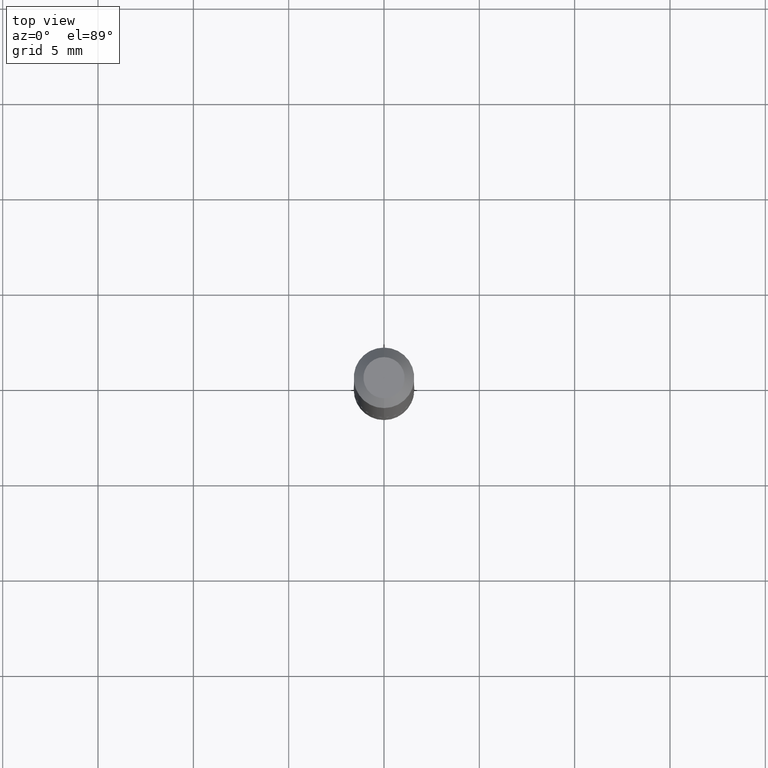
[diagram: clean part render]
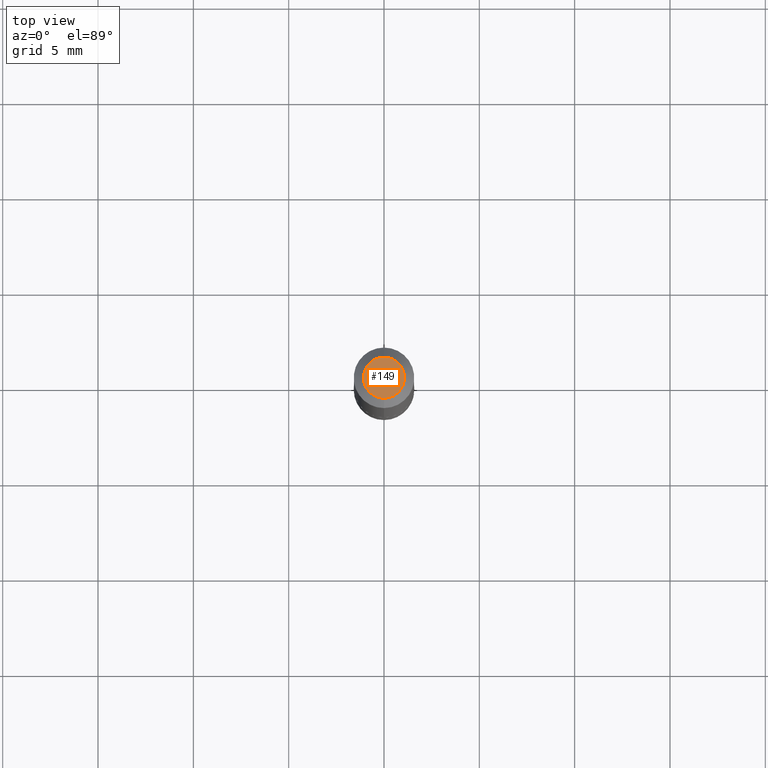
[diagram: same view with one face highlighted and labeled with its STEP entity id]
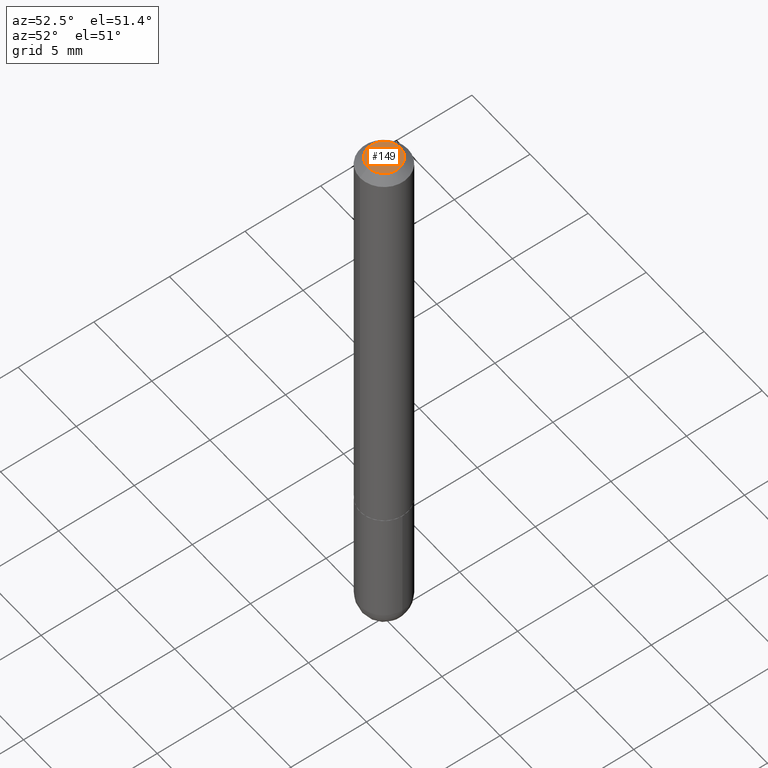
[diagram: same view with one face highlighted and labeled with its STEP entity id]
A machine part, top view. The second image highlights one B-rep face of the part: STEP entity #149.
A second angle (auxiliary view) of the same face is appended — the face is thin or edge-on in the first view.
In plain terms, the highlighted planar face has unit normal (0, -0, -1).
Its self-contained STEP definition (entity closure, byte-faithful):
#16 = AXIS2_PLACEMENT_3D ( 'NONE', #382, #95, #224 ) ;
#26 = CARTESIAN_POINT ( 'NONE',  ( -3.601761448830038135E-16, -0.04249999999999968386, 4.026143430372425824E-16 ) ) ;
#56 = AXIS2_PLACEMENT_3D ( 'NONE', #248, #373, #343 ) ;
#69 = EDGE_LOOP ( 'NONE', ( #234, #102 ) ) ;
#73 = DIRECTION ( 'NONE',  ( -6.982962677686265922E-15, -1.000000000000000000, 3.519530153201801222E-15 ) ) ;
#80 = CARTESIAN_POINT ( 'NONE',  ( 3.666055405785279275E-16, 0.04249999999999968386, 1.034542800150916889E-16 ) ) ;
#95 = DIRECTION ( 'NONE',  ( -2.425882423803152125E-29, 3.519530153201801222E-15, 1.000000000000000000 ) ) ;
#102 = ORIENTED_EDGE ( 'NONE', *, *, #329, .T. ) ;
#104 = VERTEX_POINT ( 'NONE', #80 ) ;
#114 = PLANE ( 'NONE',  #56 ) ;
#138 = CARTESIAN_POINT ( 'NONE',  ( -6.138314889504602540E-45, 8.905618892110033867E-31, 2.530343115261671418E-16 ) ) ;
#147 = CIRCLE ( 'NONE', #153, 0.04249999999999968386 ) ;
#149 = ADVANCED_FACE ( 'NONE', ( #250 ), #114, .F. ) ;
#153 = AXIS2_PLACEMENT_3D ( 'NONE', #138, #233, #73 ) ;
#173 = VERTEX_POINT ( 'NONE', #26 ) ;
#224 = DIRECTION ( 'NONE',  ( -6.982962677686265922E-15, -1.000000000000000000, 3.519530153201801222E-15 ) ) ;
#233 = DIRECTION ( 'NONE',  ( -2.425882423803152125E-29, 3.519530153201801222E-15, 1.000000000000000000 ) ) ;
#234 = ORIENTED_EDGE ( 'NONE', *, *, #363, .T. ) ;
#248 = CARTESIAN_POINT ( 'NONE',  ( 2.967759138016640869E-16, 0.04249999999999968386, -2.306287574799186970E-17 ) ) ;
#250 = FACE_OUTER_BOUND ( 'NONE', #69, .T. ) ;
#329 = EDGE_CURVE ( 'NONE', #173, #104, #376, .T. ) ;
#343 = DIRECTION ( 'NONE',  ( 6.982962677686265922E-15, 1.000000000000000000, -3.519530153201801222E-15 ) ) ;
#363 = EDGE_CURVE ( 'NONE', #104, #173, #147, .T. ) ;
#373 = DIRECTION ( 'NONE',  ( 2.425882423803151845E-29, -3.519530153201801222E-15, -1.000000000000000000 ) ) ;
#376 = CIRCLE ( 'NONE', #16, 0.04249999999999968386 ) ;
#382 = CARTESIAN_POINT ( 'NONE',  ( -6.138314889504602540E-45, 8.905618892110033867E-31, 2.530343115261671418E-16 ) ) ;